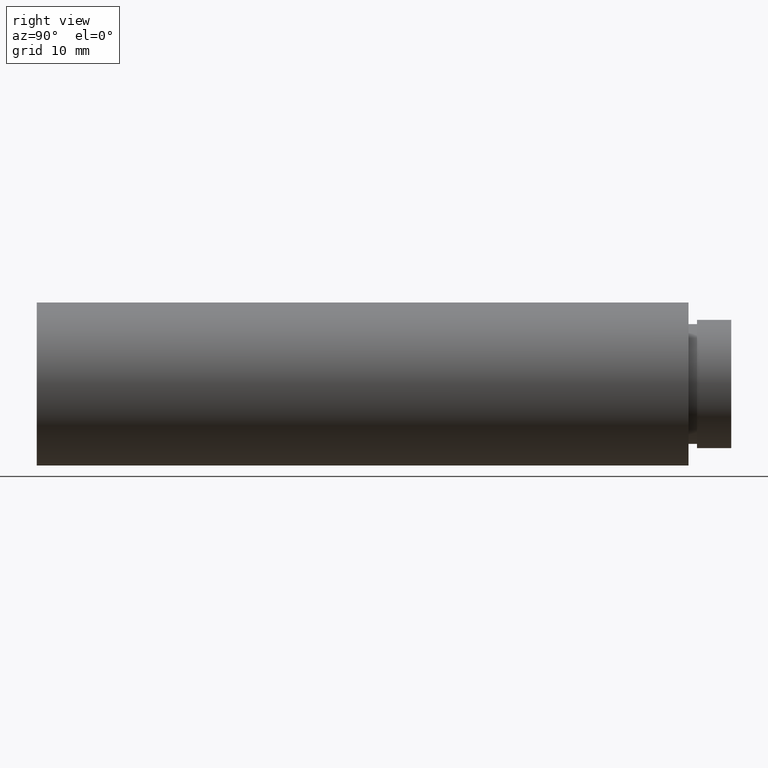
[diagram: clean part render]
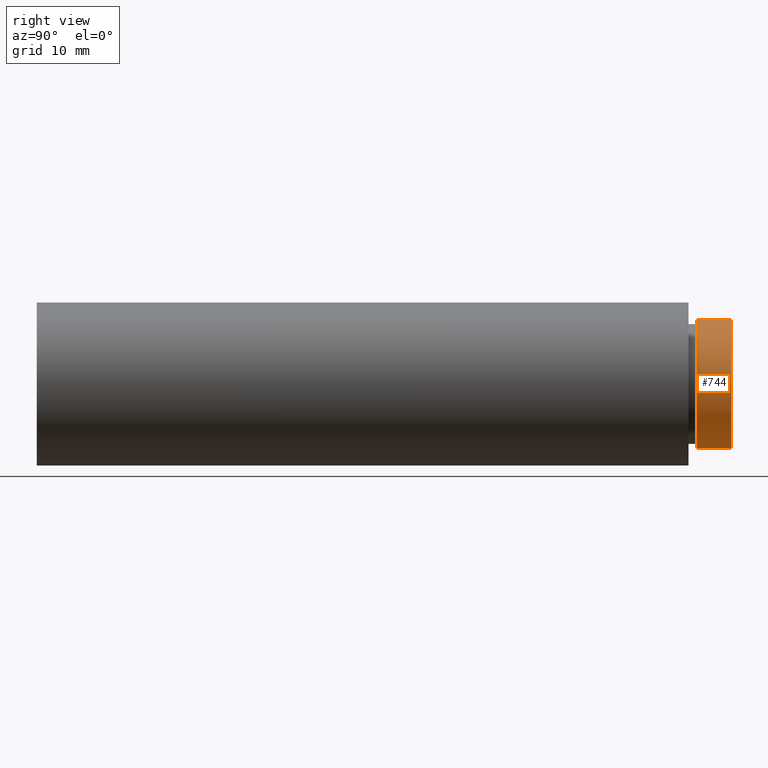
[diagram: same view with one face highlighted and labeled with its STEP entity id]
A machine part, right view. The second image highlights one B-rep face of the part: STEP entity #744.
In plain terms, the highlighted cylindrical surface (partial cylindrical patch) has radius 7.5 mm, axis along (-0, 1, -0).
Its self-contained STEP definition (entity closure, byte-faithful):
#8 = DIRECTION ( 'NONE',  ( -0.0000000000000000000, 1.000000000000000000, -0.0000000000000000000 ) ) ;
#36 = CARTESIAN_POINT ( 'NONE',  ( 0.0000000000000000000, 77.20000000000000300, 7.500000000000009800 ) ) ;
#65 = ORIENTED_EDGE ( 'NONE', *, *, #541, .T. ) ;
#74 = CARTESIAN_POINT ( 'NONE',  ( 0.0000000000000000000, 161.3761669434274500, 0.0000000000000000000 ) ) ;
#124 = CYLINDRICAL_SURFACE ( 'NONE', #409, 7.500000000000009800 ) ;
#146 = EDGE_CURVE ( 'NONE', #491, #754, #686, .T. ) ;
#147 = ORIENTED_EDGE ( 'NONE', *, *, #789, .F. ) ;
#207 = VECTOR ( 'NONE', #296, 1000.000000000000000 ) ;
#208 = DIRECTION ( 'NONE',  ( -0.0000000000000000000, 1.000000000000000000, -0.0000000000000000000 ) ) ;
#247 = ORIENTED_EDGE ( 'NONE', *, *, #146, .F. ) ;
#275 = FACE_OUTER_BOUND ( 'NONE', #642, .T. ) ;
#296 = DIRECTION ( 'NONE',  ( -0.0000000000000000000, 1.000000000000000000, -0.0000000000000000000 ) ) ;
#331 = CARTESIAN_POINT ( 'NONE',  ( 0.0000000000000000000, 81.19999999999998900, 0.0000000000000000000 ) ) ;
#351 = CIRCLE ( 'NONE', #657, 7.500000000000009800 ) ;
#382 = DIRECTION ( 'NONE',  ( 0.0000000000000000000, 0.0000000000000000000, 1.000000000000000000 ) ) ;
#396 = DIRECTION ( 'NONE',  ( 0.0000000000000000000, 0.0000000000000000000, 1.000000000000000000 ) ) ;
#409 = AXIS2_PLACEMENT_3D ( 'NONE', #74, #208, #382 ) ;
#411 = VERTEX_POINT ( 'NONE', #726 ) ;
#437 = VERTEX_POINT ( 'NONE', #476 ) ;
#438 = CIRCLE ( 'NONE', #629, 7.500000000000009800 ) ;
#450 = CARTESIAN_POINT ( 'NONE',  ( 0.0000000000000000000, 81.19999999999998900, 7.500000000000009800 ) ) ;
#476 = CARTESIAN_POINT ( 'NONE',  ( 9.184850993605161700E-016, 77.20000000000000300, -7.500000000000009800 ) ) ;
#491 = VERTEX_POINT ( 'NONE', #36 ) ;
#511 = VECTOR ( 'NONE', #795, 1000.000000000000000 ) ;
#523 = CARTESIAN_POINT ( 'NONE',  ( 0.0000000000000000000, 77.20000000000000300, 0.0000000000000000000 ) ) ;
#541 = EDGE_CURVE ( 'NONE', #437, #411, #675, .T. ) ;
#629 = AXIS2_PLACEMENT_3D ( 'NONE', #331, #710, #396 ) ;
#633 = ORIENTED_EDGE ( 'NONE', *, *, #717, .T. ) ;
#642 = EDGE_LOOP ( 'NONE', ( #633, #65, #147, #247 ) ) ;
#645 = DIRECTION ( 'NONE',  ( 0.0000000000000000000, 0.0000000000000000000, 1.000000000000000000 ) ) ;
#657 = AXIS2_PLACEMENT_3D ( 'NONE', #523, #8, #645 ) ;
#662 = CARTESIAN_POINT ( 'NONE',  ( 0.0000000000000000000, 161.3761669434274500, 7.500000000000009800 ) ) ;
#675 = LINE ( 'NONE', #689, #511 ) ;
#686 = LINE ( 'NONE', #662, #207 ) ;
#689 = CARTESIAN_POINT ( 'NONE',  ( 9.184850993605161700E-016, 161.3761669434274500, -7.500000000000009800 ) ) ;
#710 = DIRECTION ( 'NONE',  ( -0.0000000000000000000, 1.000000000000000000, -0.0000000000000000000 ) ) ;
#717 = EDGE_CURVE ( 'NONE', #491, #437, #351, .T. ) ;
#726 = CARTESIAN_POINT ( 'NONE',  ( 9.184850993605161700E-016, 81.19999999999998900, -7.500000000000009800 ) ) ;
#744 = ADVANCED_FACE ( 'NONE', ( #275 ), #124, .T. ) ;
#754 = VERTEX_POINT ( 'NONE', #450 ) ;
#789 = EDGE_CURVE ( 'NONE', #754, #411, #438, .T. ) ;
#795 = DIRECTION ( 'NONE',  ( -0.0000000000000000000, 1.000000000000000000, -0.0000000000000000000 ) ) ;